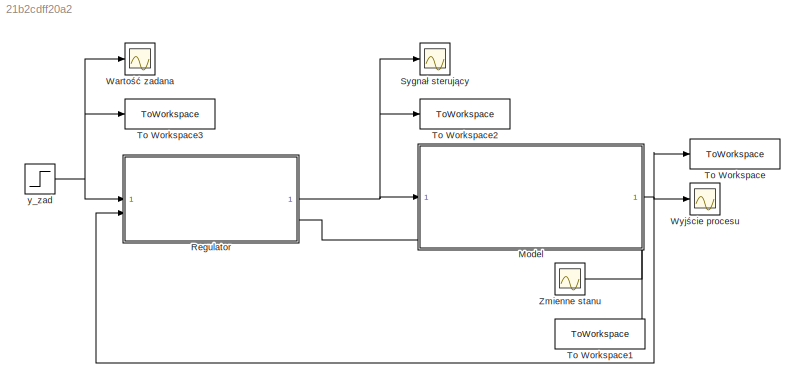
MODEL slx_21b2cdff20a2
KIND model
CONFIG AbsTol = auto
CONFIG EnableMultiTasking = off
CONFIG FixedStep = auto
CONFIG MaxStep = 0.01
CONFIG MinStep = auto
CONFIG RelTol = 1e-3
CONFIG SampleTimeConstraint = Unconstrained
CONFIG SolverName = VariableStepAuto
CONFIG StartTime = 0.0
CONFIG StopTime = t_fin
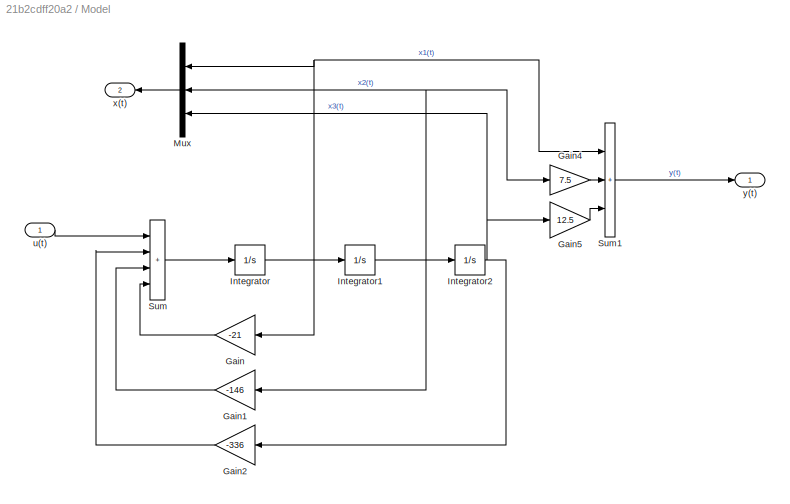
BLOCK [SubSystem] Model
  NameLocation = top
  PortSchema = {"entries":[{"content":{"sides":[{"content":{"connectorIds":["In1"]},"type":"ConnectorPlacement.EquallySpacedRectSide","uuid":"005622f6-1dbe-4fa8-b059-9458e8899b96"},{"content":{"connectorIds":["Out1"],"side":"RIGHT"},"type":"ConnectorPlacement.EquallySpacedRectSide","uuid":"7350b0ed-336f-40bc-b296-6ad5a9a87142"},{"content":{"side":"TOP"},"type":"ConnectorPlacement.EquallySpacedRectSide","uuid":"4...<+372ch>
BLOCK [Gain] Model/Gain
  Gain = -21
  NameLocation = top
BLOCK [Gain] Model/Gain1
  Gain = -146
  NameLocation = top
BLOCK [Gain] Model/Gain2
  Gain = -336
  NameLocation = top
BLOCK [Gain] Model/Gain4
  Gain = 7.5
BLOCK [Gain] Model/Gain5
  Gain = 12.5
BLOCK [Integrator] Model/Integrator
  InitialCondition = x_0(1)
BLOCK [Integrator] Model/Integrator1
  InitialCondition = x_0(2)
BLOCK [Integrator] Model/Integrator2
  InitialCondition = x_0(3)
BLOCK [Mux] Model/Mux
  DisplayOption = bar
  Inputs = 3
  NameLocation = top
BLOCK [Sum] Model/Sum
  IconShape = rectangular
  Inputs = ++++
BLOCK [Sum] Model/Sum1
  IconShape = rectangular
  Inputs = +++
BLOCK [Inport] Model/u(t)
BLOCK [Outport] Model/x(t)
  NameLocation = top
  Port = 2
BLOCK [Outport] Model/y(t)
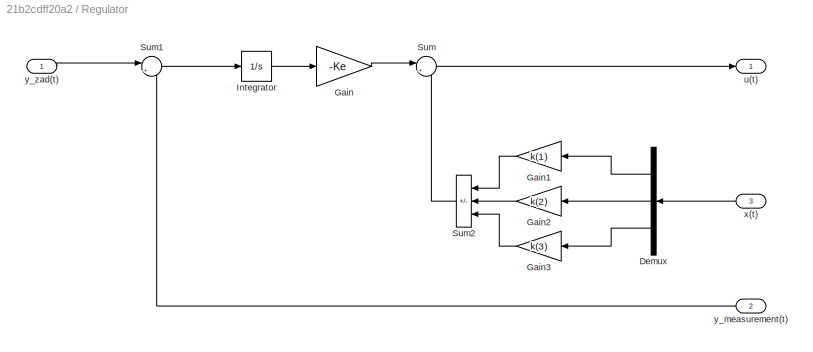
BLOCK [SubSystem] Regulator
  NameLocation = top
  PortSchema = {"entries":[{"content":{"sides":[{"content":{"connectorIds":["In1","In2"]},"type":"ConnectorPlacement.EquallySpacedRectSide","uuid":"ed667e06-c49a-4142-aa91-f7a0b3c8614c"},{"content":{"connectorIds":["Out1"],"side":"RIGHT"},"type":"ConnectorPlacement.EquallySpacedRectSide","uuid":"47761a7f-f17d-4cbd-acb7-c538467e7f39"},{"content":{"side":"TOP"},"type":"ConnectorPlacement.EquallySpacedRectSide","uu...<+377ch>
BLOCK [Demux] Regulator/Demux
  NameLocation = top
  Outputs = 3
BLOCK [Gain] Regulator/Gain
  Gain = -Ke
BLOCK [Gain] Regulator/Gain1
  Gain = k(1)
  NameLocation = top
BLOCK [Gain] Regulator/Gain2
  Gain = k(2)
  NameLocation = top
BLOCK [Gain] Regulator/Gain3
  Gain = k(3)
  NameLocation = top
BLOCK [Integrator] Regulator/Integrator
BLOCK [Sum] Regulator/Sum
  Inputs = |++
BLOCK [Sum] Regulator/Sum1
  Inputs = |+-
BLOCK [Sum] Regulator/Sum2
  IconShape = rectangular
  Inputs = ---
  NameLocation = top
BLOCK [Outport] Regulator/u(t)
BLOCK [Inport] Regulator/x(t)
  Port = 3
BLOCK [Inport] Regulator/y_measurement(t)
  NameLocation = top
  Port = 2
BLOCK [Inport] Regulator/y_zad(t)
BLOCK [Scope] Sygnał sterujący
  Floating = off
  NumInputPorts = 1
  ScopeSpecificationString = Simulink.scopes.TimeScopeBlockCfg('CurrentConfiguration', extmgr.ConfigurationSet(extmgr.Configuration('Core','General UI',true),extmgr.Configuration('Core','Source UI',true),extmgr.Configuration('Sources','WiredSimulink',true,'DataLoggingVariableName','ScopeData1'),extmgr.Configuration('Visuals','Time Domain',true,'SerializedDisplays',{struct('MinYLimReal','-73.99826','MaxYLimReal','665.99981','Y...<+1407ch>
BLOCK [ToWorkspace] To Workspace
  FixptAsFi = on
  MaxDataPoints = inf
  SampleTime = -1
  SaveFormat = Timeseries
  VariableName = y
BLOCK [ToWorkspace] To Workspace1
  FixptAsFi = on
  MaxDataPoints = inf
  SampleTime = -1
  SaveFormat = Timeseries
  VariableName = x_timeseries
BLOCK [ToWorkspace] To Workspace2
  FixptAsFi = on
  MaxDataPoints = inf
  SampleTime = -1
  SaveFormat = Timeseries
  VariableName = u
BLOCK [ToWorkspace] To Workspace3
  FixptAsFi = on
  MaxDataPoints = inf
  SampleTime = -1
  SaveFormat = Timeseries
  VariableName = y_zad
BLOCK [Scope] Wartość zadana
  Floating = off
  NumInputPorts = 1
  ScopeSpecificationString = Simulink.scopes.TimeScopeBlockCfg('CurrentConfiguration', extmgr.ConfigurationSet(extmgr.Configuration('Core','General UI',true),extmgr.Configuration('Core','Source UI',true),extmgr.Configuration('Sources','WiredSimulink',true,'DataLoggingVariableName','ScopeData1'),extmgr.Configuration('Visuals','Time Domain',true,'SerializedDisplays',{struct('MinYLimReal','-1.25','MaxYLimReal','11.25','YLabelRea...<+1350ch>
BLOCK [Scope] Wyjście procesu
  Floating = off
  NumInputPorts = 1
  ScopeSpecificationString = Simulink.scopes.TimeScopeBlockCfg('CurrentConfiguration', extmgr.ConfigurationSet(extmgr.Configuration('Core','General UI',true),extmgr.Configuration('Core','Source UI',true),extmgr.Configuration('Sources','WiredSimulink',true,'DataLoggingVariableName','ScopeData2'),extmgr.Configuration('Visuals','Time Domain',true,'SerializedDisplays',{struct('MinYLimReal','-0.20171','MaxYLimReal','1.81543','YLab...<+1425ch>
BLOCK [Scope] Zmienne stanu
  Floating = off
  NumInputPorts = 1
  ScopeSpecificationString = Simulink.scopes.TimeScopeBlockCfg('CurrentConfiguration', extmgr.ConfigurationSet(extmgr.Configuration('Core','General UI',true),extmgr.Configuration('Core','Source UI',true),extmgr.Configuration('Sources','WiredSimulink',true),extmgr.Configuration('Visuals','Time Domain',true,'SerializedDisplays',{struct('MinYLimReal','-0.47651','MaxYLimReal','0.86949','YLabelReal','','MinYLimMag','0.00000','MaxY...<+1382ch>
BLOCK [Step] y_zad
  After = step_value
  SampleTime = 0
  Time = step_time
LINE Model/Gain1:1 -> Model/Sum:3
LINE Model/Gain2:1 -> Model/Sum:2
LINE Model/Gain4:1 -> Model/Sum1:2
LINE Model/Gain5:1 -> Model/Sum1:3
LINE Model/Gain:1 -> Model/Sum:4
NET Model/Integrator1:1 -> Model/Gain1:1, Model/Gain4:1, Model/Integrator2:1, Model/Mux:2
NET Model/Integrator2:1 -> Model/Gain2:1, Model/Gain5:1, Model/Mux:3
NET Model/Integrator:1 -> Model/Gain:1, Model/Integrator1:1, Model/Mux:1, Model/Sum1:1
LINE Model/Mux:1 -> Model/x(t):1
LINE Model/Sum1:1 -> Model/y(t):1
LINE Model/Sum:1 -> Model/Integrator:1
LINE Model/u(t):1 -> Model/Sum:1
NET Model:1 -> Regulator:2, To Workspace:1, Wyjście procesu:1
NET Model:2 -> Regulator:3, To Workspace1:1, Zmienne stanu:1
LINE Regulator/Demux:1 -> Regulator/Gain1:1
LINE Regulator/Demux:2 -> Regulator/Gain2:1
LINE Regulator/Demux:3 -> Regulator/Gain3:1
LINE Regulator/Gain1:1 -> Regulator/Sum2:1
LINE Regulator/Gain2:1 -> Regulator/Sum2:2
LINE Regulator/Gain3:1 -> Regulator/Sum2:3
LINE Regulator/Gain:1 -> Regulator/Sum:1
LINE Regulator/Integrator:1 -> Regulator/Gain:1
LINE Regulator/Sum1:1 -> Regulator/Integrator:1
LINE Regulator/Sum2:1 -> Regulator/Sum:2
LINE Regulator/Sum:1 -> Regulator/u(t):1
LINE Regulator/x(t):1 -> Regulator/Demux:1
LINE Regulator/y_measurement(t):1 -> Regulator/Sum1:2
LINE Regulator/y_zad(t):1 -> Regulator/Sum1:1
NET Regulator:1 -> Model:1, Sygnał sterujący:1, To Workspace2:1
NET y_zad:1 -> Regulator:1, To Workspace3:1, Wartość zadana:1
note: NET lines group one-source signal fan-out (src -> all destinations, sorted); 1:1 wires keep LINE
